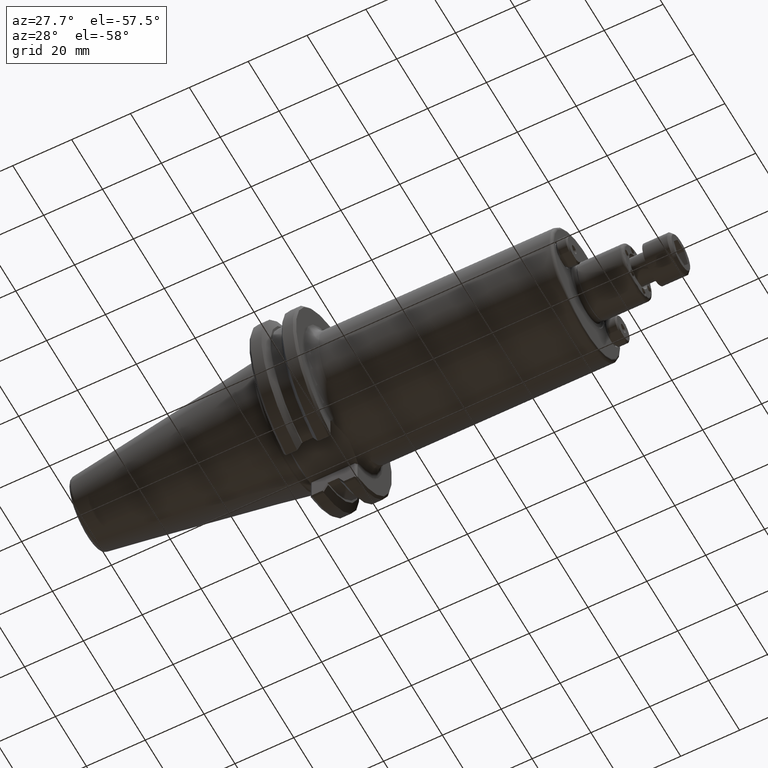
[diagram: clean part render]
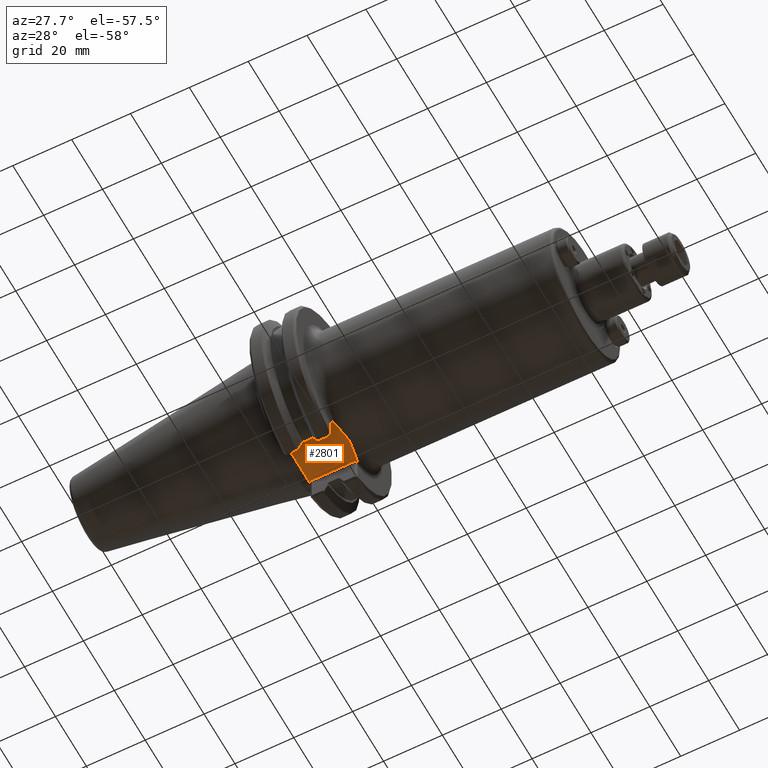
[diagram: same view with one face highlighted and labeled with its STEP entity id]
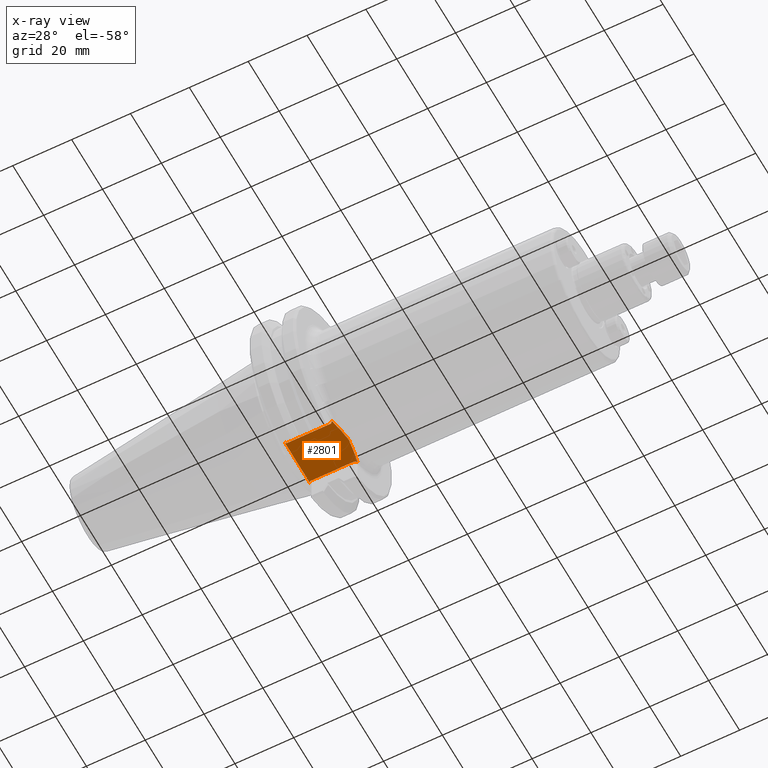
[diagram: x-ray of the same camera — body ghosted, the highlighted face saturated]
A machine part, auxiliary view. The second image highlights one B-rep face of the part: STEP entity #2801.
The next image is the same camera in x-ray: the body ghosted, the highlighted face saturated — about 0% of this face is hidden behind the body in this view.
In plain terms, the highlighted planar face has unit normal (0, 0, 1).
Its self-contained STEP definition (entity closure, byte-faithful):
#235=B_SPLINE_CURVE_WITH_KNOTS('',3,(#4241,#4242,#4243,#4244,#4245,#4246,
#4247,#4248,#4249,#4250,#4251,#4252,#4253,#4254,#4255),.UNSPECIFIED.,.F.,
 .F.,(4,2,2,3,2,2,4),(6.2307883203267,6.33772044316949,6.68285254415788,
7.02798464514628,7.37311674613467,7.71824884712307,7.82518096973857),
 .UNSPECIFIED.);
#273=B_SPLINE_CURVE_WITH_KNOTS('',3,(#5763,#5764,#5765,#5766,#5767,#5768,
#5769,#5770,#5771,#5772,#5773),.UNSPECIFIED.,.F.,.F.,(4,2,3,2,4),(2.31052109915462,
2.38928397529744,2.5765613596665,2.76383874403557,2.84260162017839),
 .UNSPECIFIED.);
#419=PLANE('',#3087);
#565=FACE_OUTER_BOUND('',#806,.T.);
#806=EDGE_LOOP('',(#2412,#2413,#2414,#2415,#2416,#2417,#2418,#2419,#2420,
#2421));
#1088=LINE('',#5673,#1225);
#1090=LINE('',#5678,#1227);
#1091=LINE('',#5681,#1228);
#1095=LINE('',#5697,#1232);
#1097=LINE('',#5702,#1234);
#1098=LINE('',#5706,#1235);
#1106=LINE('',#5778,#1243);
#1107=LINE('',#5781,#1244);
#1225=VECTOR('',#3580,0.0236396103067886);
#1227=VECTOR('',#3586,0.59156854249493);
#1228=VECTOR('',#3591,0.0382384305357912);
#1232=VECTOR('',#3601,0.0382384304782591);
#1234=VECTOR('',#3607,0.591568542494918);
#1235=VECTOR('',#3612,0.02363961030679);
#1243=VECTOR('',#3666,0.204997332773839);
#1244=VECTOR('',#3671,0.204997332774318);
#1350=VERTEX_POINT('',#4239);
#1351=VERTEX_POINT('',#4240);
#1456=VERTEX_POINT('',#5670);
#1457=VERTEX_POINT('',#5672);
#1458=VERTEX_POINT('',#5677);
#1461=VERTEX_POINT('',#5696);
#1462=VERTEX_POINT('',#5701);
#1463=VERTEX_POINT('',#5705);
#1476=VERTEX_POINT('',#5761);
#1477=VERTEX_POINT('',#5762);
#1624=EDGE_CURVE('',#1350,#1351,#235,.F.);
#1763=EDGE_CURVE('',#1456,#1457,#1088,.T.);
#1766=EDGE_CURVE('',#1457,#1458,#1090,.T.);
#1768=EDGE_CURVE('',#1458,#1351,#1091,.T.);
#1774=EDGE_CURVE('',#1350,#1461,#1095,.T.);
#1777=EDGE_CURVE('',#1461,#1462,#1097,.T.);
#1779=EDGE_CURVE('',#1462,#1463,#1098,.T.);
#1800=EDGE_CURVE('',#1476,#1477,#273,.F.);
#1803=EDGE_CURVE('',#1456,#1476,#1106,.T.);
#1806=EDGE_CURVE('',#1477,#1463,#1107,.T.);
#2412=ORIENTED_EDGE('',*,*,#1763,.F.);
#2413=ORIENTED_EDGE('',*,*,#1803,.T.);
#2414=ORIENTED_EDGE('',*,*,#1800,.T.);
#2415=ORIENTED_EDGE('',*,*,#1806,.T.);
#2416=ORIENTED_EDGE('',*,*,#1779,.F.);
#2417=ORIENTED_EDGE('',*,*,#1777,.F.);
#2418=ORIENTED_EDGE('',*,*,#1774,.F.);
#2419=ORIENTED_EDGE('',*,*,#1624,.T.);
#2420=ORIENTED_EDGE('',*,*,#1768,.F.);
#2421=ORIENTED_EDGE('',*,*,#1766,.F.);
#2801=ADVANCED_FACE('',(#565),#419,.F.);
#3087=AXIS2_PLACEMENT_3D('',#5835,#3736,#3737);
#3580=DIRECTION('',(0.707106781186432,0.707106781186662,0.));
#3586=DIRECTION('',(1.,1.62280443356971E-13,0.));
#3591=DIRECTION('',(0.707106781186548,-0.707106781186547,0.));
#3601=DIRECTION('',(-0.707106781186546,-0.707106781186549,0.));
#3607=DIRECTION('',(-1.,-1.62419203889982E-13,0.));
#3612=DIRECTION('',(-0.707106781186662,0.707106781186433,0.));
#3666=DIRECTION('',(-1.16523256636576E-36,1.,0.));
#3671=DIRECTION('',(-1.16523256636576E-36,1.,0.));
#3736=DIRECTION('center_axis',(0.,0.,1.));
#3737=DIRECTION('ref_axis',(1.,0.,0.));
#4239=CARTESIAN_POINT('',(0.760322924745299,0.327038653488713,-0.888));
#4240=CARTESIAN_POINT('',(0.760322924730674,-0.327038653584031,-0.888));
#4241=CARTESIAN_POINT('Ctrl Pts',(0.760322924730674,-0.327038653584031,
-0.888));
#4242=CARTESIAN_POINT('Ctrl Pts',(0.762616441608279,-0.312090385144608,
-0.888));
#4243=CARTESIAN_POINT('Ctrl Pts',(0.76515187320608,-0.297520973452656,-0.888));
#4244=CARTESIAN_POINT('Ctrl Pts',(0.776046286311972,-0.239203843414844,
-0.888));
#4245=CARTESIAN_POINT('Ctrl Pts',(0.78742778196496,-0.190792138550159,-0.888));
#4246=CARTESIAN_POINT('Ctrl Pts',(0.807673481185368,-0.0939256386002338,
-0.888));
#4247=CARTESIAN_POINT('Ctrl Pts',(0.815676892577836,-0.0452929266388969,
-0.888));
#4248=CARTESIAN_POINT('Ctrl Pts',(0.815676892577836,-6.57567662721027E-37,
-0.888));
#4249=CARTESIAN_POINT('Ctrl Pts',(0.815676892577836,0.0452929266388969,
-0.888));
#4250=CARTESIAN_POINT('Ctrl Pts',(0.807673481185368,0.0939256386002339,
-0.888));
#4251=CARTESIAN_POINT('Ctrl Pts',(0.78742778196496,0.190792138550159,-0.888));
#4252=CARTESIAN_POINT('Ctrl Pts',(0.776046286311972,0.239203843414844,-0.888));
#4253=CARTESIAN_POINT('Ctrl Pts',(0.765151873211557,0.297520973423336,-0.888));
#4254=CARTESIAN_POINT('Ctrl Pts',(0.762616441619051,0.312090385082672,-0.888));
#4255=CARTESIAN_POINT('Ctrl Pts',(0.760322924745299,0.327038653488713,-0.888));
#5670=CARTESIAN_POINT('',(0.125,-0.316715728752299,-0.888));
#5672=CARTESIAN_POINT('',(0.141715728752535,-0.299999999999759,-0.888));
#5673=CARTESIAN_POINT('',(0.307898622073941,-0.133817106678299,-0.888));
#5677=CARTESIAN_POINT('',(0.733284271247465,-0.299999999999663,-0.888));
#5678=CARTESIAN_POINT('',(0.334081515395428,-0.299999999999727,-0.888));
#5681=CARTESIAN_POINT('',(0.61993289332143,-0.186648622073628,-0.888));
#5696=CARTESIAN_POINT('',(0.733284271247459,0.300000000000337,-0.888));
#5697=CARTESIAN_POINT('',(0.619932893321412,0.186648622074289,-0.888));
#5701=CARTESIAN_POINT('',(0.141715728752541,0.300000000000241,-0.888));
#5702=CARTESIAN_POINT('',(0.649081515395331,0.300000000000324,-0.888));
#5705=CARTESIAN_POINT('',(0.125,0.316715728752777,-0.888));
#5706=CARTESIAN_POINT('',(0.307898622073977,0.133817106678859,-0.888));
#5761=CARTESIAN_POINT('',(0.125,-0.11171839597846,-0.888));
#5762=CARTESIAN_POINT('',(0.125,0.11171839597846,-0.888));
#5763=CARTESIAN_POINT('Ctrl Pts',(0.125,0.11171839597846,-0.888));
#5764=CARTESIAN_POINT('Ctrl Pts',(0.125,0.101382060526646,-0.888));
#5765=CARTESIAN_POINT('Ctrl Pts',(0.12490012078969,0.0889788601264407,-0.888));
#5766=CARTESIAN_POINT('Ctrl Pts',(0.124535784579865,0.0540673411642428,
-0.888));
#5767=CARTESIAN_POINT('Ctrl Pts',(0.12417190429163,0.0245770845628693,-0.888));
#5768=CARTESIAN_POINT('Ctrl Pts',(0.12417190429163,3.39920529035119E-38,
-0.888));
#5769=CARTESIAN_POINT('Ctrl Pts',(0.12417190429163,-0.0245770845628693,
-0.888));
#5770=CARTESIAN_POINT('Ctrl Pts',(0.124535784579865,-0.0540673411642428,
-0.888));
#5771=CARTESIAN_POINT('Ctrl Pts',(0.12490012078969,-0.0889788601264407,
-0.888));
#5772=CARTESIAN_POINT('Ctrl Pts',(0.125,-0.101382060526646,-0.888));
#5773=CARTESIAN_POINT('Ctrl Pts',(0.125,-0.11171839597846,-0.888));
#5778=CARTESIAN_POINT('',(0.125,0.531250000000153,-0.888));
#5781=CARTESIAN_POINT('',(0.125,0.531250000000153,-0.888));
#5835=CARTESIAN_POINT('Origin',(0.54316303079076,3.06533111948112E-13,-0.888));